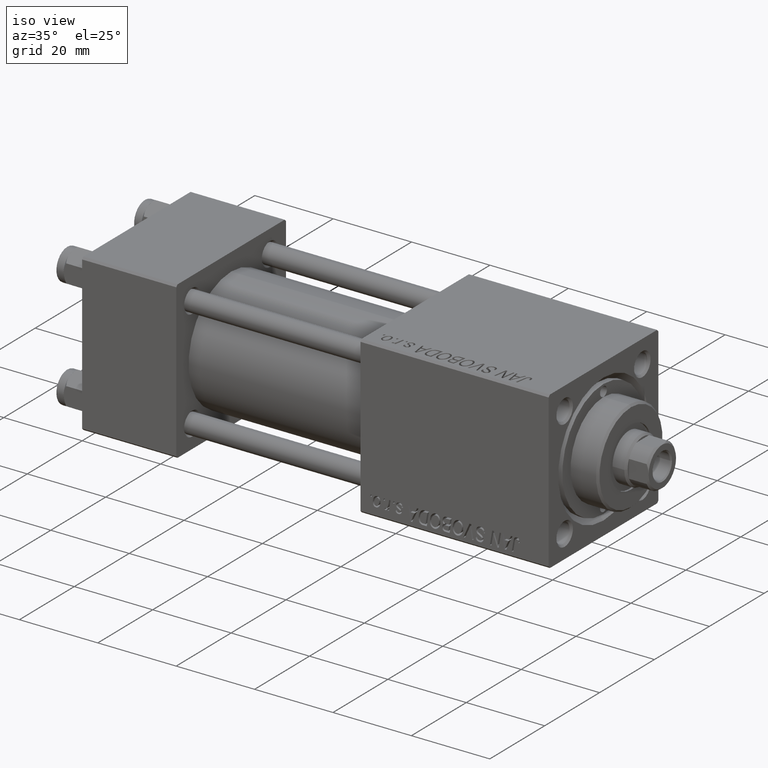
[diagram: clean part render]
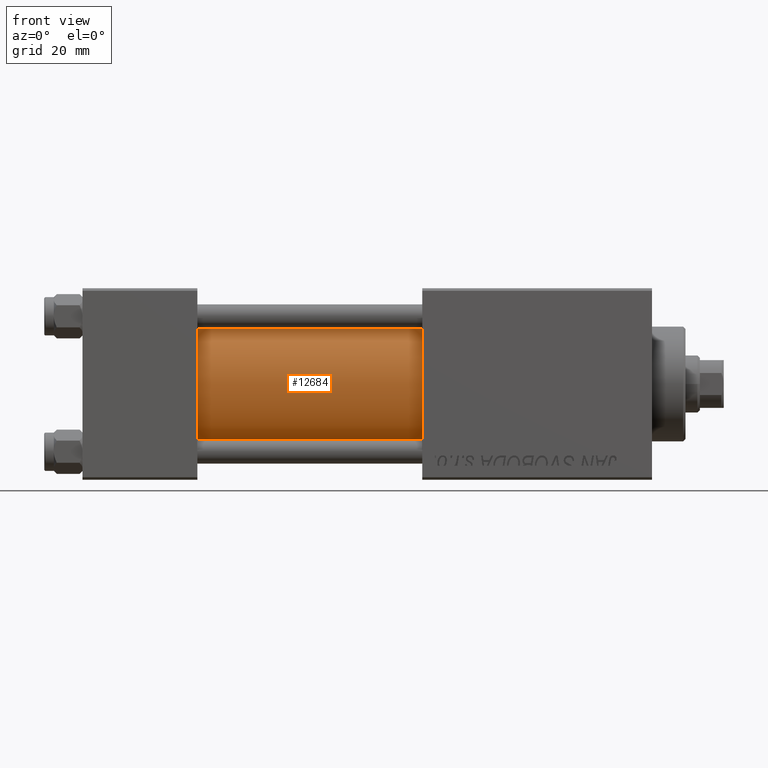
[diagram: tour spotlight — one face highlighted and labeled with its STEP entity id]
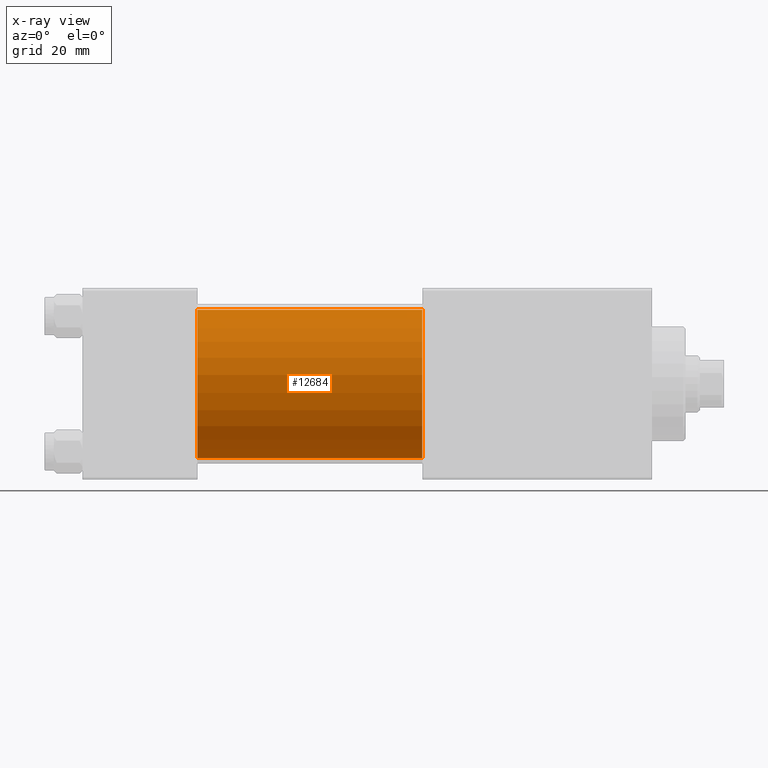
[diagram: x-ray of the same camera — body ghosted, this tour face saturated]
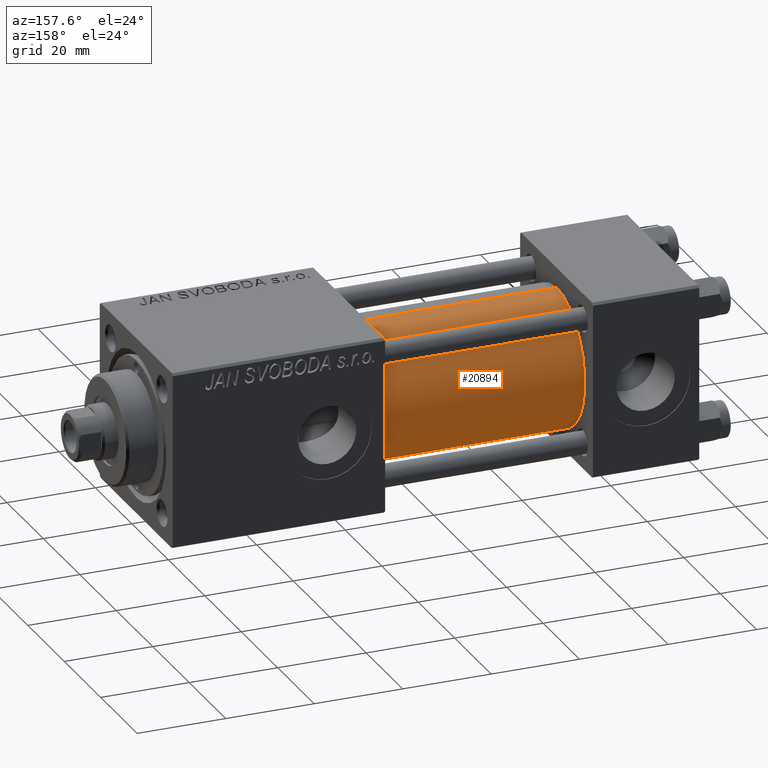
[diagram: tour spotlight — one face highlighted and labeled with its STEP entity id]
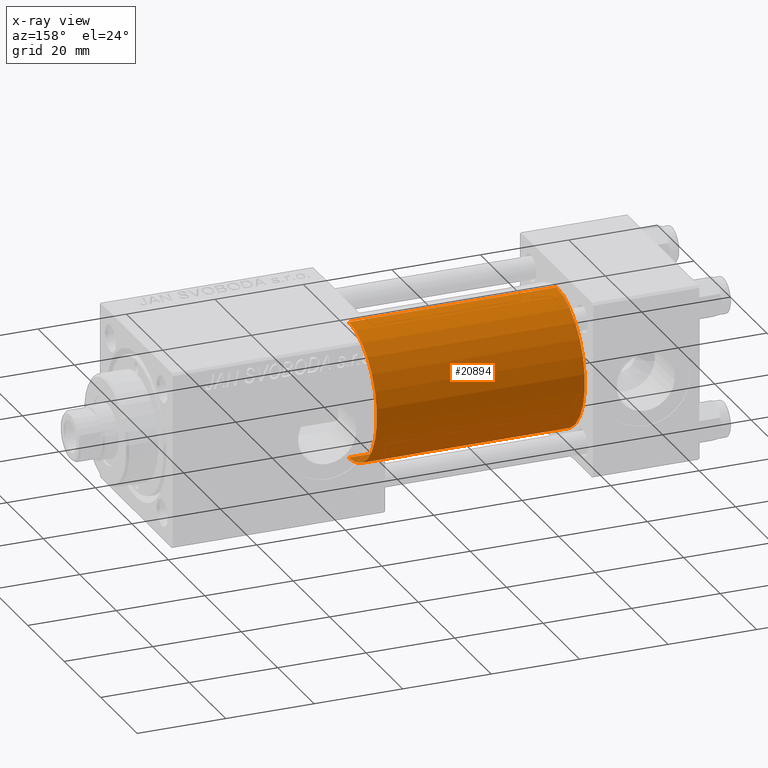
[diagram: x-ray of the same camera — body ghosted, this tour face saturated]
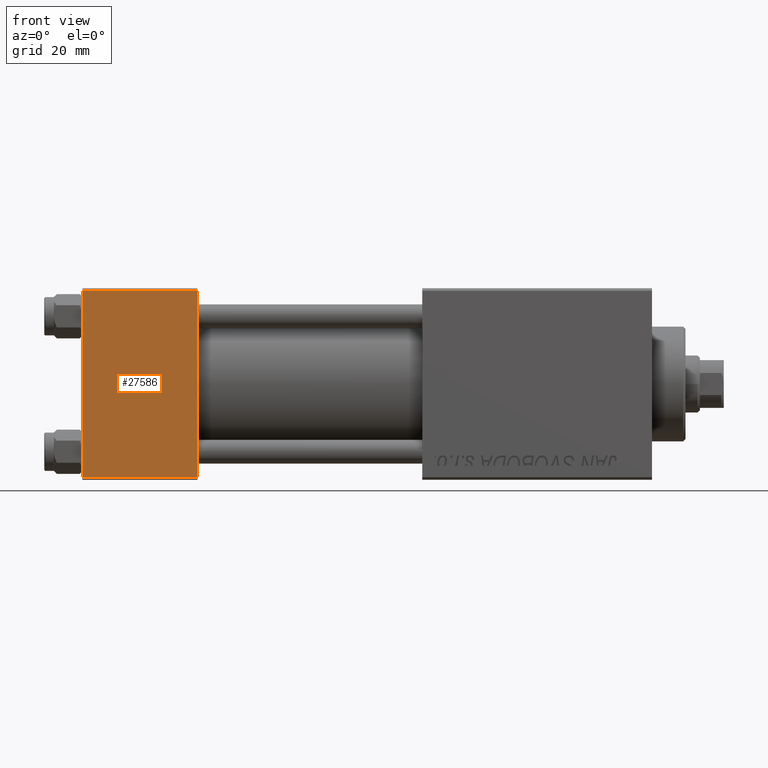
[diagram: tour spotlight — one face highlighted and labeled with its STEP entity id]
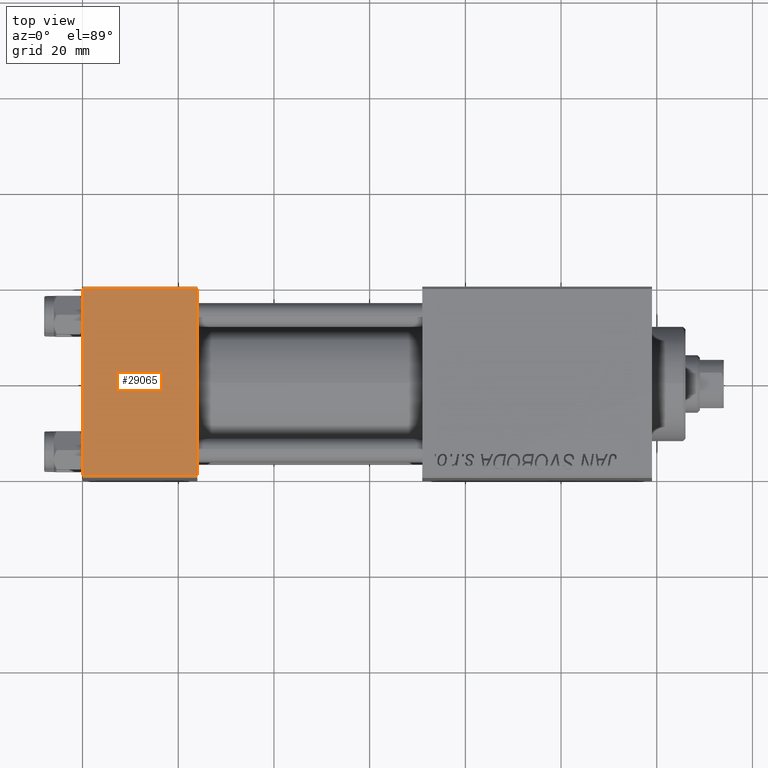
[diagram: tour spotlight — one face highlighted and labeled with its STEP entity id]
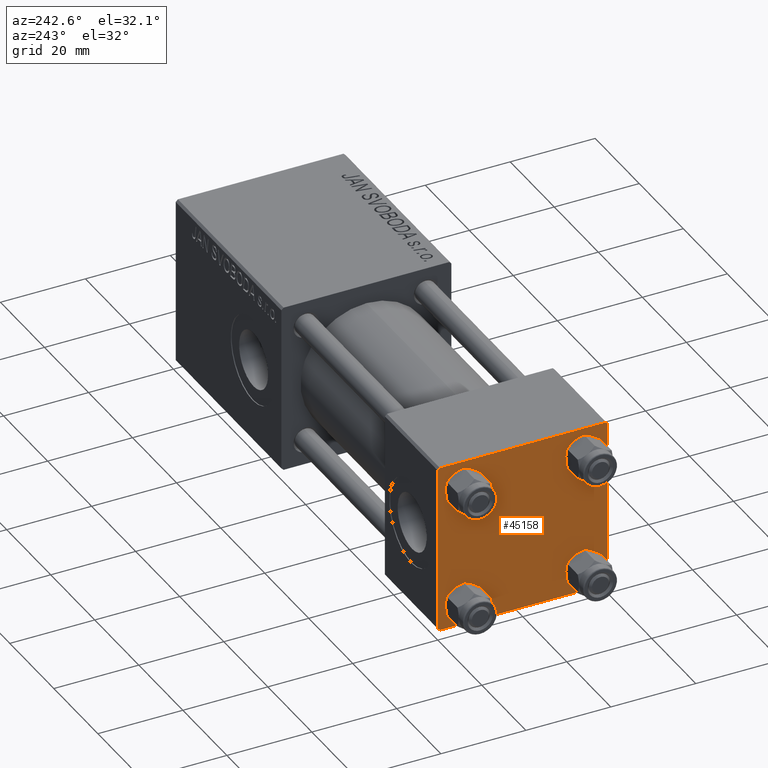
[diagram: tour spotlight — one face highlighted and labeled with its STEP entity id]
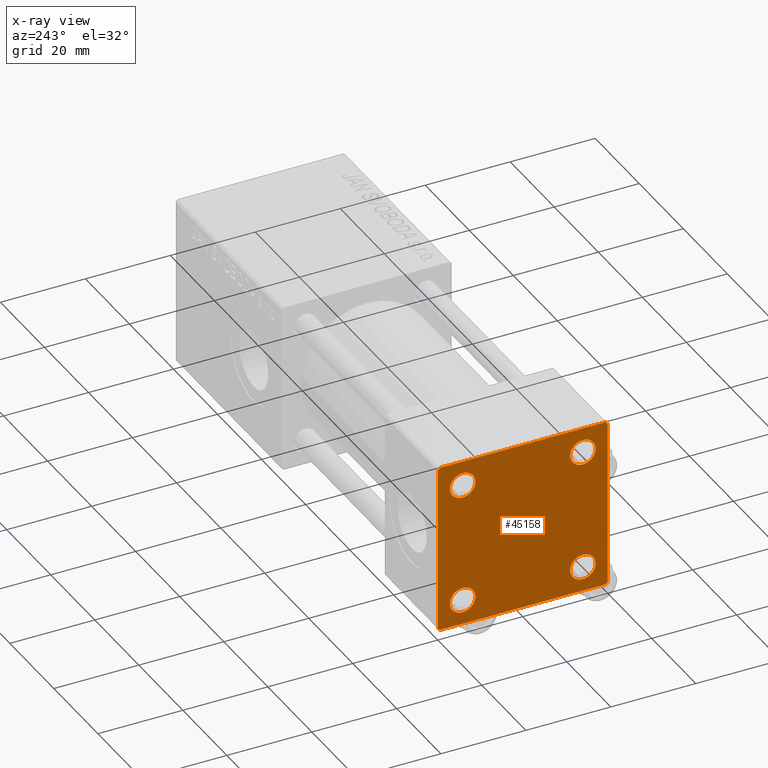
[diagram: x-ray of the same camera — body ghosted, this tour face saturated]
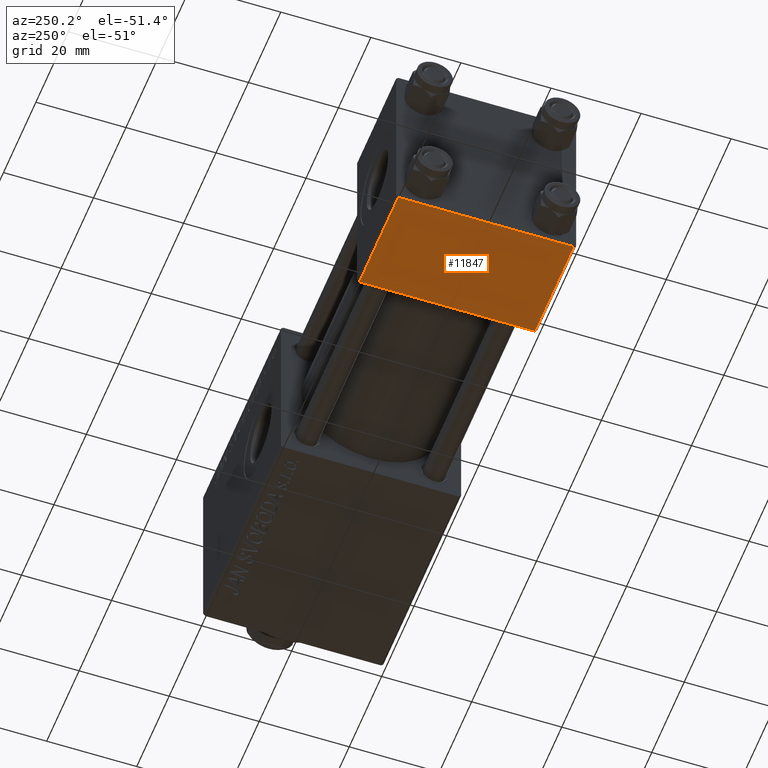
[diagram: tour spotlight — one face highlighted and labeled with its STEP entity id]
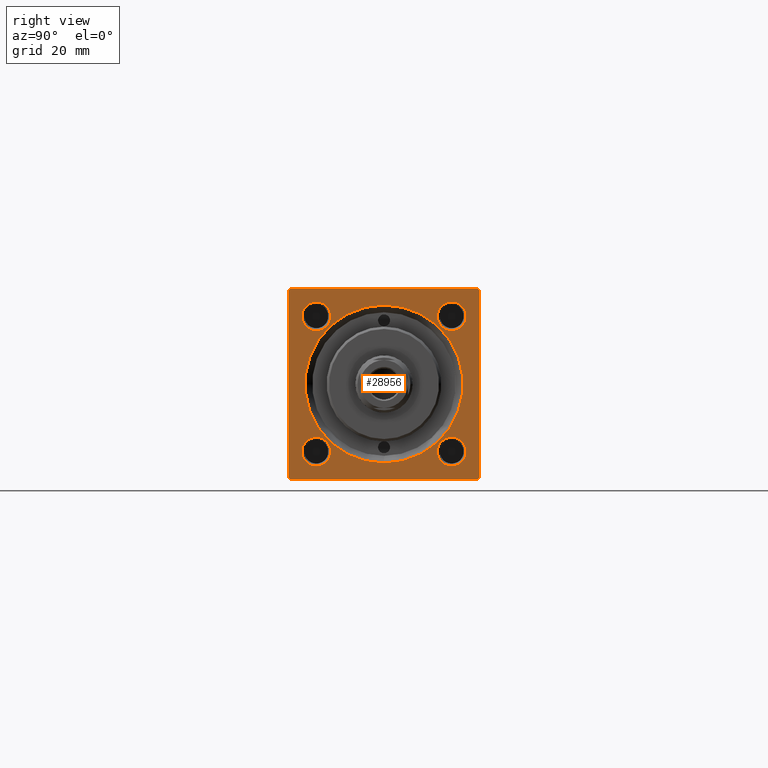
[diagram: tour spotlight — one face highlighted and labeled with its STEP entity id]
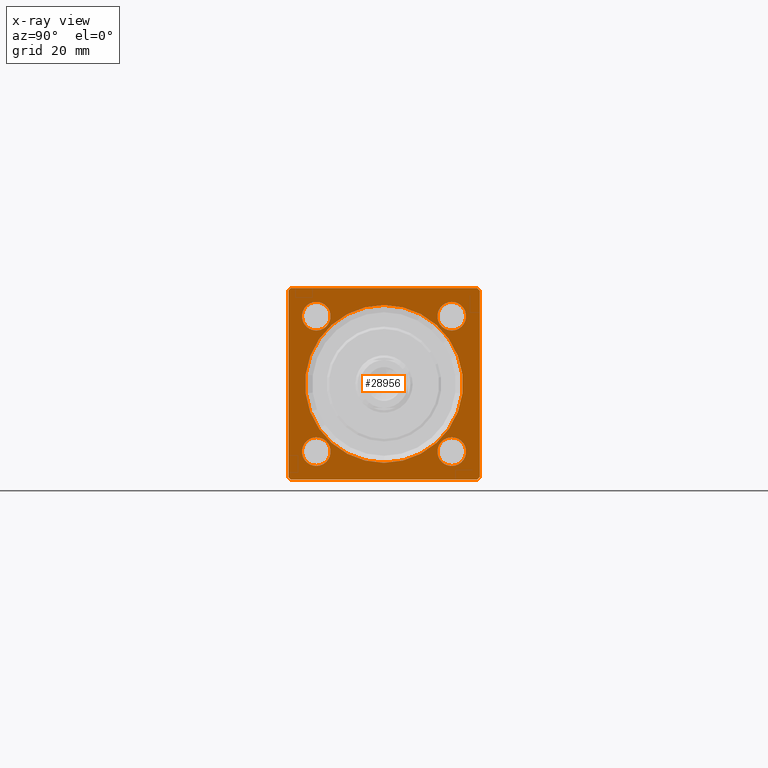
[diagram: x-ray of the same camera — body ghosted, this tour face saturated]
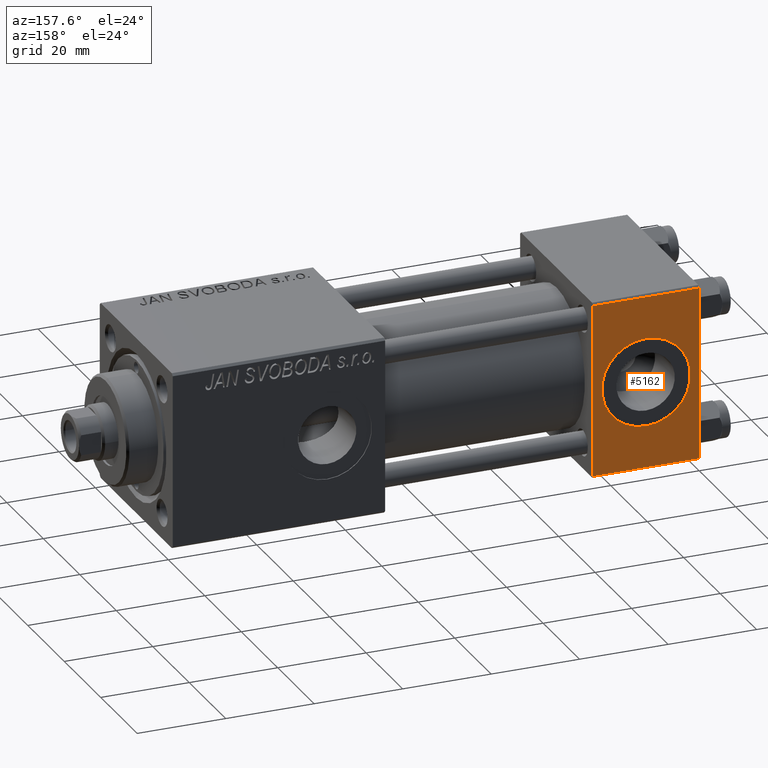
[diagram: tour spotlight — one face highlighted and labeled with its STEP entity id]
A machine part: a face-by-face anatomy tour. The part has 1154 B-rep faces; the first image is the clean iso view, then the 8 largest visible faces are spotlighted one at a time (largest first), each with its STEP entity span.

Face 1 — front view, entity #12684. An x-ray twin of the same camera follows (body ghosted, this face saturated) — the face is partly hidden behind the body. In plain terms, the highlighted cylindrical surface (partial cylindrical patch) has radius 15.5 mm, axis along (-1, -0, -0).
Definition (entity closure, byte-faithful):
#2378 = FACE_OUTER_BOUND ( 'NONE', #46344, .T. ) ;
#3227 = CARTESIAN_POINT ( 'NONE',  ( 71.00000000000001421, -7.038826752868131828E-16, -15.50000000000000000 ) ) ;
#3403 = AXIS2_PLACEMENT_3D ( 'NONE', #40737, #18108, #25751 ) ;
#3718 = VERTEX_POINT ( 'NONE', #3227 ) ;
#5942 = DIRECTION ( 'NONE',  ( -1.000000000000000000, -0.000000000000000000, -0.000000000000000000 ) ) ;
#8661 = VERTEX_POINT ( 'NONE', #15104 ) ;
#9322 = DIRECTION ( 'NONE',  ( -1.000000000000000000, -0.000000000000000000, -0.000000000000000000 ) ) ;
#11490 = VERTEX_POINT ( 'NONE', #21511 ) ;
#12684 = ADVANCED_FACE ( 'NONE', ( #2378 ), #29598, .T. ) ;
#14285 = DIRECTION ( 'NONE',  ( 0.000000000000000000, 0.000000000000000000, 1.000000000000000000 ) ) ;
#15104 = CARTESIAN_POINT ( 'NONE',  ( 71.00000000000001421, -2.602085213965210642E-15, 15.50000000000000000 ) ) ;
#16439 = EDGE_CURVE ( 'NONE', #3718, #11490, #45515, .T. ) ;
#16962 = CARTESIAN_POINT ( 'NONE',  ( 71.00000000000001421, -2.602085213965210642E-15, 15.50000000000000000 ) ) ;
#16988 = VECTOR ( 'NONE', #26453, 1000.000000000000000 ) ;
#17289 = CIRCLE ( 'NONE', #21335, 15.50000000000000000 ) ;
#17852 = DIRECTION ( 'NONE',  ( 1.000000000000000000, 0.000000000000000000, 0.000000000000000000 ) ) ;
#18106 = CARTESIAN_POINT ( 'NONE',  ( 24.00000000000000000, -2.602085213965210642E-15, 0.000000000000000000 ) ) ;
#18108 = DIRECTION ( 'NONE',  ( 1.000000000000000000, 0.000000000000000000, 0.000000000000000000 ) ) ;
#20442 = ORIENTED_EDGE ( 'NONE', *, *, #30897, .T. ) ;
#21335 = AXIS2_PLACEMENT_3D ( 'NONE', #18106, #17852, #14285 ) ;
#21511 = CARTESIAN_POINT ( 'NONE',  ( 24.00000000000000000, -7.038826752868131828E-16, -15.50000000000000000 ) ) ;
#24775 = CARTESIAN_POINT ( 'NONE',  ( 71.00000000000001421, -2.602085213965210642E-15, 0.000000000000000000 ) ) ;
#25751 = DIRECTION ( 'NONE',  ( 0.000000000000000000, 0.000000000000000000, -1.000000000000000000 ) ) ;
#26453 = DIRECTION ( 'NONE',  ( -1.000000000000000000, -0.000000000000000000, -0.000000000000000000 ) ) ;
#27936 = LINE ( 'NONE', #16962, #46862 ) ;
#28994 = EDGE_CURVE ( 'NONE', #8661, #3718, #29393, .T. ) ;
#29008 = CARTESIAN_POINT ( 'NONE',  ( 24.00000000000000000, -2.602085213965210642E-15, 15.50000000000000000 ) ) ;
#29393 = CIRCLE ( 'NONE', #3403, 15.50000000000000000 ) ;
#29598 = CYLINDRICAL_SURFACE ( 'NONE', #48648, 15.50000000000000000 ) ;
#30897 = EDGE_CURVE ( 'NONE', #38963, #11490, #17289, .T. ) ;
#33847 = ORIENTED_EDGE ( 'NONE', *, *, #28994, .F. ) ;
#34017 = ORIENTED_EDGE ( 'NONE', *, *, #45062, .T. ) ;
#38963 = VERTEX_POINT ( 'NONE', #29008 ) ;
#40737 = CARTESIAN_POINT ( 'NONE',  ( 71.00000000000001421, -2.602085213965210642E-15, 0.000000000000000000 ) ) ;
#42048 = ORIENTED_EDGE ( 'NONE', *, *, #16439, .F. ) ;
#42462 = CARTESIAN_POINT ( 'NONE',  ( 71.00000000000001421, -7.038826752868131828E-16, -15.50000000000000000 ) ) ;
#44843 = DIRECTION ( 'NONE',  ( 0.000000000000000000, 0.000000000000000000, 1.000000000000000000 ) ) ;
#45062 = EDGE_CURVE ( 'NONE', #8661, #38963, #27936, .T. ) ;
#45515 = LINE ( 'NONE', #42462, #16988 ) ;
#46344 = EDGE_LOOP ( 'NONE', ( #42048, #33847, #34017, #20442 ) ) ;
#46862 = VECTOR ( 'NONE', #9322, 1000.000000000000000 ) ;
#48648 = AXIS2_PLACEMENT_3D ( 'NONE', #24775, #5942, #44843 ) ;

Face 2 — auxiliary view, entity #20894. An x-ray twin of the same camera follows (body ghosted, this face saturated) — the face is partly hidden behind the body. In plain terms, the highlighted cylindrical surface (partial cylindrical patch) has radius 15.5 mm, axis along (-1, -0, -0).
Definition (entity closure, byte-faithful):
#1043 = DIRECTION ( 'NONE',  ( -1.000000000000000000, -0.000000000000000000, -0.000000000000000000 ) ) ;
#3227 = CARTESIAN_POINT ( 'NONE',  ( 71.00000000000001421, -7.038826752868131828E-16, -15.50000000000000000 ) ) ;
#3256 = AXIS2_PLACEMENT_3D ( 'NONE', #3717, #35001, #42118 ) ;
#3717 = CARTESIAN_POINT ( 'NONE',  ( 71.00000000000001421, -2.602085213965210642E-15, 0.000000000000000000 ) ) ;
#3718 = VERTEX_POINT ( 'NONE', #3227 ) ;
#4631 = DIRECTION ( 'NONE',  ( 0.000000000000000000, 0.000000000000000000, 1.000000000000000000 ) ) ;
#6905 = DIRECTION ( 'NONE',  ( 0.000000000000000000, 0.000000000000000000, 1.000000000000000000 ) ) ;
#7409 = CARTESIAN_POINT ( 'NONE',  ( 24.00000000000000000, -2.602085213965210642E-15, 0.000000000000000000 ) ) ;
#8661 = VERTEX_POINT ( 'NONE', #15104 ) ;
#8930 = CIRCLE ( 'NONE', #15452, 15.50000000000000000 ) ;
#9322 = DIRECTION ( 'NONE',  ( -1.000000000000000000, -0.000000000000000000, -0.000000000000000000 ) ) ;
#11490 = VERTEX_POINT ( 'NONE', #21511 ) ;
#12988 = CARTESIAN_POINT ( 'NONE',  ( 71.00000000000001421, -2.602085213965210642E-15, 0.000000000000000000 ) ) ;
#15104 = CARTESIAN_POINT ( 'NONE',  ( 71.00000000000001421, -2.602085213965210642E-15, 15.50000000000000000 ) ) ;
#15452 = AXIS2_PLACEMENT_3D ( 'NONE', #7409, #34626, #6905 ) ;
#16249 = CIRCLE ( 'NONE', #3256, 15.50000000000000000 ) ;
#16439 = EDGE_CURVE ( 'NONE', #3718, #11490, #45515, .T. ) ;
#16962 = CARTESIAN_POINT ( 'NONE',  ( 71.00000000000001421, -2.602085213965210642E-15, 15.50000000000000000 ) ) ;
#16988 = VECTOR ( 'NONE', #26453, 1000.000000000000000 ) ;
#18133 = EDGE_CURVE ( 'NONE', #3718, #8661, #16249, .T. ) ;
#18325 = EDGE_CURVE ( 'NONE', #11490, #38963, #8930, .T. ) ;
#20894 = ADVANCED_FACE ( 'NONE', ( #48318 ), #21131, .T. ) ;
#21131 = CYLINDRICAL_SURFACE ( 'NONE', #46406, 15.50000000000000000 ) ;
#21398 = ORIENTED_EDGE ( 'NONE', *, *, #18133, .F. ) ;
#21511 = CARTESIAN_POINT ( 'NONE',  ( 24.00000000000000000, -7.038826752868131828E-16, -15.50000000000000000 ) ) ;
#25129 = ORIENTED_EDGE ( 'NONE', *, *, #45062, .F. ) ;
#26453 = DIRECTION ( 'NONE',  ( -1.000000000000000000, -0.000000000000000000, -0.000000000000000000 ) ) ;
#27936 = LINE ( 'NONE', #16962, #46862 ) ;
#29008 = CARTESIAN_POINT ( 'NONE',  ( 24.00000000000000000, -2.602085213965210642E-15, 15.50000000000000000 ) ) ;
#34626 = DIRECTION ( 'NONE',  ( 1.000000000000000000, 0.000000000000000000, 0.000000000000000000 ) ) ;
#34857 = ORIENTED_EDGE ( 'NONE', *, *, #16439, .T. ) ;
#35001 = DIRECTION ( 'NONE',  ( 1.000000000000000000, 0.000000000000000000, 0.000000000000000000 ) ) ;
#38963 = VERTEX_POINT ( 'NONE', #29008 ) ;
#42118 = DIRECTION ( 'NONE',  ( 0.000000000000000000, 0.000000000000000000, -1.000000000000000000 ) ) ;
#42462 = CARTESIAN_POINT ( 'NONE',  ( 71.00000000000001421, -7.038826752868131828E-16, -15.50000000000000000 ) ) ;
#45062 = EDGE_CURVE ( 'NONE', #8661, #38963, #27936, .T. ) ;
#45515 = LINE ( 'NONE', #42462, #16988 ) ;
#46406 = AXIS2_PLACEMENT_3D ( 'NONE', #12988, #1043, #4631 ) ;
#46862 = VECTOR ( 'NONE', #9322, 1000.000000000000000 ) ;
#48318 = FACE_OUTER_BOUND ( 'NONE', #48499, .T. ) ;
#48499 = EDGE_LOOP ( 'NONE', ( #21398, #34857, #49182, #25129 ) ) ;
#49182 = ORIENTED_EDGE ( 'NONE', *, *, #18325, .T. ) ;

Face 3 — front view, entity #27586. In plain terms, the highlighted planar face has unit normal (0, 1, 0).
Definition (entity closure, byte-faithful):
#1701 = VERTEX_POINT ( 'NONE', #5565 ) ;
#4259 = VECTOR ( 'NONE', #7854, 1000.000000000000000 ) ;
#5565 = CARTESIAN_POINT ( 'NONE',  ( 24.00000000000000000, -20.00000000000000000, -19.49999999999999645 ) ) ;
#7854 = DIRECTION ( 'NONE',  ( 1.000000000000000000, 0.000000000000000000, 0.000000000000000000 ) ) ;
#8600 = LINE ( 'NONE', #39149, #4259 ) ;
#10069 = PLANE ( 'NONE',  #44882 ) ;
#10736 = EDGE_LOOP ( 'NONE', ( #20014, #42426, #12896, #40430 ) ) ;
#10826 = LINE ( 'NONE', #14386, #35934 ) ;
#12415 = DIRECTION ( 'NONE',  ( 0.000000000000000000, 8.673617379884036705E-17, -1.000000000000000000 ) ) ;
#12896 = ORIENTED_EDGE ( 'NONE', *, *, #40652, .F. ) ;
#14141 = DIRECTION ( 'NONE',  ( 0.000000000000000000, -8.673617379884036705E-17, 1.000000000000000000 ) ) ;
#14386 = CARTESIAN_POINT ( 'NONE',  ( 24.00000000000000000, -20.00000000000000355, 19.49999999999998224 ) ) ;
#18115 = VERTEX_POINT ( 'NONE', #18981 ) ;
#18216 = CARTESIAN_POINT ( 'NONE',  ( 24.00000000000000000, -20.00000000000000355, 19.99999999999998934 ) ) ;
#18723 = CARTESIAN_POINT ( 'NONE',  ( 0.000000000000000000, -20.00000000000000355, 19.99999999999998934 ) ) ;
#18981 = CARTESIAN_POINT ( 'NONE',  ( 0.000000000000000000, -20.00000000000000355, 19.49999999999998224 ) ) ;
#20014 = ORIENTED_EDGE ( 'NONE', *, *, #24526, .T. ) ;
#24445 = VERTEX_POINT ( 'NONE', #25095 ) ;
#24526 = EDGE_CURVE ( 'NONE', #18115, #24445, #48728, .T. ) ;
#24616 = CARTESIAN_POINT ( 'NONE',  ( 24.00000000000000000, -20.00000000000000355, 19.99999999999998934 ) ) ;
#25095 = CARTESIAN_POINT ( 'NONE',  ( 0.000000000000000000, -20.00000000000000000, -19.49999999999999645 ) ) ;
#26030 = EDGE_CURVE ( 'NONE', #24445, #1701, #8600, .T. ) ;
#26885 = EDGE_CURVE ( 'NONE', #35729, #18115, #10826, .T. ) ;
#27586 = ADVANCED_FACE ( 'NONE', ( #41106 ), #10069, .F. ) ;
#30174 = DIRECTION ( 'NONE',  ( -0.000000000000000000, 1.000000000000000000, 8.673617379884036705E-17 ) ) ;
#35568 = LINE ( 'NONE', #24616, #48426 ) ;
#35729 = VERTEX_POINT ( 'NONE', #43535 ) ;
#35934 = VECTOR ( 'NONE', #49218, 1000.000000000000000 ) ;
#36683 = VECTOR ( 'NONE', #41604, 1000.000000000000000 ) ;
#39149 = CARTESIAN_POINT ( 'NONE',  ( 24.00000000000000000, -20.00000000000000000, -19.49999999999999645 ) ) ;
#40430 = ORIENTED_EDGE ( 'NONE', *, *, #26885, .T. ) ;
#40652 = EDGE_CURVE ( 'NONE', #35729, #1701, #35568, .T. ) ;
#41106 = FACE_OUTER_BOUND ( 'NONE', #10736, .T. ) ;
#41604 = DIRECTION ( 'NONE',  ( 0.000000000000000000, 8.673617379884036705E-17, -1.000000000000000000 ) ) ;
#42426 = ORIENTED_EDGE ( 'NONE', *, *, #26030, .T. ) ;
#43535 = CARTESIAN_POINT ( 'NONE',  ( 24.00000000000000000, -20.00000000000000355, 19.49999999999998224 ) ) ;
#44882 = AXIS2_PLACEMENT_3D ( 'NONE', #18216, #30174, #14141 ) ;
#48426 = VECTOR ( 'NONE', #12415, 1000.000000000000000 ) ;
#48728 = LINE ( 'NONE', #18723, #36683 ) ;
#49218 = DIRECTION ( 'NONE',  ( -1.000000000000000000, 0.000000000000000000, 0.000000000000000000 ) ) ;

Face 4 — top view, entity #29065. In plain terms, the highlighted planar face has unit normal (0, 0, -1).
Definition (entity closure, byte-faithful):
#3745 = CARTESIAN_POINT ( 'NONE',  ( 24.00000000000000000, -19.49999999999999289, 19.99999999999998934 ) ) ;
#4491 = DIRECTION ( 'NONE',  ( 1.000000000000000000, 0.000000000000000000, 0.000000000000000000 ) ) ;
#5973 = VECTOR ( 'NONE', #22776, 1000.000000000000000 ) ;
#11155 = PLANE ( 'NONE',  #36673 ) ;
#11557 = ORIENTED_EDGE ( 'NONE', *, *, #39276, .F. ) ;
#11659 = CARTESIAN_POINT ( 'NONE',  ( 0.000000000000000000, -19.49999999999999289, 19.99999999999998934 ) ) ;
#13413 = CARTESIAN_POINT ( 'NONE',  ( 24.00000000000000000, 20.00000000000000000, 20.00000000000000000 ) ) ;
#13611 = ORIENTED_EDGE ( 'NONE', *, *, #44492, .T. ) ;
#14273 = LINE ( 'NONE', #22180, #39547 ) ;
#15413 = ORIENTED_EDGE ( 'NONE', *, *, #23496, .T. ) ;
#18386 = VERTEX_POINT ( 'NONE', #43012 ) ;
#19265 = LINE ( 'NONE', #3745, #38242 ) ;
#20164 = EDGE_CURVE ( 'NONE', #42672, #18386, #19265, .T. ) ;
#22180 = CARTESIAN_POINT ( 'NONE',  ( 0.000000000000000000, 19.50000000000000000, 20.00000000000000000 ) ) ;
#22776 = DIRECTION ( 'NONE',  ( 0.000000000000000000, -1.000000000000000000, -2.602085213965210149E-16 ) ) ;
#23496 = EDGE_CURVE ( 'NONE', #34818, #42672, #49712, .T. ) ;
#25647 = VECTOR ( 'NONE', #28947, 1000.000000000000000 ) ;
#27953 = EDGE_LOOP ( 'NONE', ( #15413, #33531, #11557, #13611 ) ) ;
#28947 = DIRECTION ( 'NONE',  ( 0.000000000000000000, -1.000000000000000000, -2.602085213965210149E-16 ) ) ;
#29065 = ADVANCED_FACE ( 'NONE', ( #45989 ), #11155, .F. ) ;
#30225 = CARTESIAN_POINT ( 'NONE',  ( 0.000000000000000000, 19.50000000000000000, 20.00000000000000000 ) ) ;
#30402 = CARTESIAN_POINT ( 'NONE',  ( 0.000000000000000000, 20.00000000000000000, 20.00000000000000000 ) ) ;
#33531 = ORIENTED_EDGE ( 'NONE', *, *, #20164, .T. ) ;
#34818 = VERTEX_POINT ( 'NONE', #30225 ) ;
#36673 = AXIS2_PLACEMENT_3D ( 'NONE', #38123, #43175, #50052 ) ;
#37434 = DIRECTION ( 'NONE',  ( -1.000000000000000000, 0.000000000000000000, 0.000000000000000000 ) ) ;
#38123 = CARTESIAN_POINT ( 'NONE',  ( 24.00000000000000000, 20.00000000000000000, 20.00000000000000000 ) ) ;
#38242 = VECTOR ( 'NONE', #4491, 1000.000000000000000 ) ;
#39276 = EDGE_CURVE ( 'NONE', #45378, #18386, #44694, .T. ) ;
#39547 = VECTOR ( 'NONE', #37434, 1000.000000000000000 ) ;
#42130 = CARTESIAN_POINT ( 'NONE',  ( 24.00000000000000000, 19.50000000000000000, 20.00000000000000000 ) ) ;
#42672 = VERTEX_POINT ( 'NONE', #11659 ) ;
#43012 = CARTESIAN_POINT ( 'NONE',  ( 24.00000000000000000, -19.49999999999999289, 19.99999999999998934 ) ) ;
#43175 = DIRECTION ( 'NONE',  ( 0.000000000000000000, 2.602085213965210149E-16, -1.000000000000000000 ) ) ;
#44492 = EDGE_CURVE ( 'NONE', #45378, #34818, #14273, .T. ) ;
#44694 = LINE ( 'NONE', #13413, #25647 ) ;
#45378 = VERTEX_POINT ( 'NONE', #42130 ) ;
#45989 = FACE_OUTER_BOUND ( 'NONE', #27953, .T. ) ;
#49712 = LINE ( 'NONE', #30402, #5973 ) ;
#50052 = DIRECTION ( 'NONE',  ( 0.000000000000000000, 1.000000000000000000, 2.602085213965210149E-16 ) ) ;

Face 5 — auxiliary view, entity #45158. An x-ray twin of the same camera follows (body ghosted, this face saturated) — the face is partly hidden behind the body. In plain terms, the highlighted planar face has unit normal (-1, 0, 0).
Definition (entity closure, byte-faithful):
#593 = AXIS2_PLACEMENT_3D ( 'NONE', #18488, #22314, #14156 ) ;
#778 = CIRCLE ( 'NONE', #1592, 2.999999999999983569 ) ;
#826 = CARTESIAN_POINT ( 'NONE',  ( 0.000000000000000000, -14.14999999999999503, -11.15000000000000036 ) ) ;
#954 = VERTEX_POINT ( 'NONE', #9347 ) ;
#1249 = VERTEX_POINT ( 'NONE', #47708 ) ;
#1353 = VERTEX_POINT ( 'NONE', #22276 ) ;
#1515 = DIRECTION ( 'NONE',  ( 0.000000000000000000, 0.000000000000000000, 1.000000000000000000 ) ) ;
#1592 = AXIS2_PLACEMENT_3D ( 'NONE', #2409, #13853, #44107 ) ;
#1621 = ORIENTED_EDGE ( 'NONE', *, *, #27841, .T. ) ;
#2173 = CIRCLE ( 'NONE', #43594, 3.000000000000004441 ) ;
#2268 = CARTESIAN_POINT ( 'NONE',  ( 0.000000000000000000, 14.14999999999999858, 17.14999999999998437 ) ) ;
#2409 = CARTESIAN_POINT ( 'NONE',  ( 0.000000000000000000, -14.14999999999999503, 14.15000000000000391 ) ) ;
#2500 = VERTEX_POINT ( 'NONE', #31802 ) ;
#2706 = VERTEX_POINT ( 'NONE', #26933 ) ;
#2974 = FACE_BOUND ( 'NONE', #40891, .T. ) ;
#3361 = CARTESIAN_POINT ( 'NONE',  ( -0.000000000000000000, -19.74999999999992539, 19.75000000000006395 ) ) ;
#3466 = EDGE_LOOP ( 'NONE', ( #27292, #9738 ) ) ;
#3491 = DIRECTION ( 'NONE',  ( 1.000000000000000000, 0.000000000000000000, 0.000000000000000000 ) ) ;
#3709 = DIRECTION ( 'NONE',  ( 0.000000000000000000, -0.7071067811865401342, 0.7071067811865549002 ) ) ;
#4711 = DIRECTION ( 'NONE',  ( 0.000000000000000000, -1.000000000000000000, 1.734723475976807094E-16 ) ) ;
#4749 = VECTOR ( 'NONE', #33017, 1000.000000000000000 ) ;
#5344 = DIRECTION ( 'NONE',  ( 1.000000000000000000, 0.000000000000000000, 0.000000000000000000 ) ) ;
#5524 = FACE_BOUND ( 'NONE', #3466, .T. ) ;
#5868 = CIRCLE ( 'NONE', #10741, 2.999999999999983569 ) ;
#5973 = VECTOR ( 'NONE', #22776, 1000.000000000000000 ) ;
#7718 = DIRECTION ( 'NONE',  ( 0.000000000000000000, 0.7071067811865425767, -0.7071067811865525687 ) ) ;
#7875 = DIRECTION ( 'NONE',  ( 0.000000000000000000, 0.000000000000000000, -1.000000000000000000 ) ) ;
#8226 = CARTESIAN_POINT ( 'NONE',  ( 0.000000000000000000, 14.14999999999999858, -14.15000000000000036 ) ) ;
#8903 = EDGE_CURVE ( 'NONE', #18115, #42672, #34383, .T. ) ;
#9098 = CARTESIAN_POINT ( 'NONE',  ( 0.000000000000000000, 14.14999999999999858, 11.15000000000001990 ) ) ;
#9347 = CARTESIAN_POINT ( 'NONE',  ( 0.000000000000000000, 19.50000000000000711, -20.00000000000000711 ) ) ;
#9589 = DIRECTION ( 'NONE',  ( 1.000000000000000000, 0.000000000000000000, 0.000000000000000000 ) ) ;
#9612 = CARTESIAN_POINT ( 'NONE',  ( 0.000000000000000000, 20.00000000000000000, -19.50000000000002132 ) ) ;
#9648 = VECTOR ( 'NONE', #7718, 999.9999999999998863 ) ;
#9738 = ORIENTED_EDGE ( 'NONE', *, *, #12892, .T. ) ;
#10201 = EDGE_CURVE ( 'NONE', #34757, #954, #14187, .T. ) ;
#10281 = ORIENTED_EDGE ( 'NONE', *, *, #10201, .T. ) ;
#10343 = FACE_BOUND ( 'NONE', #38796, .T. ) ;
#10503 = AXIS2_PLACEMENT_3D ( 'NONE', #13992, #36634, #17559 ) ;
#10634 = CARTESIAN_POINT ( 'NONE',  ( 0.000000000000000000, -14.14999999999999503, 14.15000000000000391 ) ) ;
#10741 = AXIS2_PLACEMENT_3D ( 'NONE', #18290, #46254, #26937 ) ;
#11199 = AXIS2_PLACEMENT_3D ( 'NONE', #34390, #46588, #19386 ) ;
#11202 = VECTOR ( 'NONE', #49375, 1000.000000000000114 ) ;
#11659 = CARTESIAN_POINT ( 'NONE',  ( 0.000000000000000000, -19.49999999999999289, 19.99999999999998934 ) ) ;
#12579 = CARTESIAN_POINT ( 'NONE',  ( 0.000000000000000000, 20.00000000000000000, -20.00000000000000711 ) ) ;
#12804 = ORIENTED_EDGE ( 'NONE', *, *, #8903, .T. ) ;
#12892 = EDGE_CURVE ( 'NONE', #43622, #2500, #778, .T. ) ;
#12899 = FACE_BOUND ( 'NONE', #45573, .T. ) ;
#13853 = DIRECTION ( 'NONE',  ( 1.000000000000000000, 0.000000000000000000, 0.000000000000000000 ) ) ;
#13992 = CARTESIAN_POINT ( 'NONE',  ( 0.000000000000000000, -14.14999999999999503, -14.15000000000000391 ) ) ;
#14156 = DIRECTION ( 'NONE',  ( -0.000000000000000000, 0.000000000000000000, 1.000000000000000000 ) ) ;
#14187 = LINE ( 'NONE', #17495, #4749 ) ;
#14361 = EDGE_CURVE ( 'NONE', #1249, #34757, #42468, .T. ) ;
#14736 = VECTOR ( 'NONE', #4711, 1000.000000000000000 ) ;
#15458 = DIRECTION ( 'NONE',  ( 1.000000000000000000, 0.000000000000000000, 0.000000000000000000 ) ) ;
#15513 = CARTESIAN_POINT ( 'NONE',  ( 0.000000000000000000, 20.00000000000000000, 20.00000000000000000 ) ) ;
#15690 = ORIENTED_EDGE ( 'NONE', *, *, #49907, .T. ) ;
#17285 = EDGE_CURVE ( 'NONE', #36341, #2706, #40545, .T. ) ;
#17495 = CARTESIAN_POINT ( 'NONE',  ( -0.000000000000000000, 19.74999999999986855, -19.75000000000014211 ) ) ;
#17559 = DIRECTION ( 'NONE',  ( 0.000000000000000000, 0.000000000000000000, 1.000000000000000000 ) ) ;
#18115 = VERTEX_POINT ( 'NONE', #18981 ) ;
#18290 = CARTESIAN_POINT ( 'NONE',  ( 0.000000000000000000, 14.14999999999999858, 14.15000000000000036 ) ) ;
#18488 = CARTESIAN_POINT ( 'NONE',  ( 0.000000000000000000, 0.000000000000000000, 0.000000000000000000 ) ) ;
#18723 = CARTESIAN_POINT ( 'NONE',  ( 0.000000000000000000, -20.00000000000000355, 19.99999999999998934 ) ) ;
#18751 = DIRECTION ( 'NONE',  ( 0.000000000000000000, 0.000000000000000000, 1.000000000000000000 ) ) ;
#18981 = CARTESIAN_POINT ( 'NONE',  ( 0.000000000000000000, -20.00000000000000355, 19.49999999999998224 ) ) ;
#19386 = DIRECTION ( 'NONE',  ( 0.000000000000000000, 0.000000000000000000, 1.000000000000000000 ) ) ;
#19687 = CARTESIAN_POINT ( 'NONE',  ( -0.000000000000000000, 19.75000000000013500, 19.74999999999986144 ) ) ;
#20135 = ORIENTED_EDGE ( 'NONE', *, *, #25023, .T. ) ;
#20993 = ORIENTED_EDGE ( 'NONE', *, *, #14361, .T. ) ;
#21083 = VERTEX_POINT ( 'NONE', #9098 ) ;
#21179 = ORIENTED_EDGE ( 'NONE', *, *, #46236, .T. ) ;
#22201 = ORIENTED_EDGE ( 'NONE', *, *, #45832, .T. ) ;
#22276 = CARTESIAN_POINT ( 'NONE',  ( 0.000000000000000000, 14.14999999999999858, -11.15000000000001812 ) ) ;
#22314 = DIRECTION ( 'NONE',  ( -1.000000000000000000, 0.000000000000000000, -0.000000000000000000 ) ) ;
#22573 = CARTESIAN_POINT ( 'NONE',  ( 0.000000000000000000, -14.14999999999999503, -14.15000000000000391 ) ) ;
#22776 = DIRECTION ( 'NONE',  ( 0.000000000000000000, -1.000000000000000000, -2.602085213965210149E-16 ) ) ;
#23496 = EDGE_CURVE ( 'NONE', #34818, #42672, #49712, .T. ) ;
#23506 = LINE ( 'NONE', #19687, #9648 ) ;
#24445 = VERTEX_POINT ( 'NONE', #25095 ) ;
#24526 = EDGE_CURVE ( 'NONE', #18115, #24445, #48728, .T. ) ;
#24986 = CIRCLE ( 'NONE', #11199, 2.999999999999983569 ) ;
#25023 = EDGE_CURVE ( 'NONE', #40414, #21083, #5868, .T. ) ;
#25095 = CARTESIAN_POINT ( 'NONE',  ( 0.000000000000000000, -20.00000000000000000, -19.49999999999999645 ) ) ;
#26933 = CARTESIAN_POINT ( 'NONE',  ( 0.000000000000000000, -14.14999999999999503, -17.15000000000000924 ) ) ;
#26937 = DIRECTION ( 'NONE',  ( 0.000000000000000000, 0.000000000000000000, 1.000000000000000000 ) ) ;
#27292 = ORIENTED_EDGE ( 'NONE', *, *, #34923, .T. ) ;
#27841 = EDGE_CURVE ( 'NONE', #954, #29246, #29101, .T. ) ;
#29101 = LINE ( 'NONE', #12579, #14736 ) ;
#29246 = VERTEX_POINT ( 'NONE', #31732 ) ;
#30077 = ORIENTED_EDGE ( 'NONE', *, *, #23496, .F. ) ;
#30225 = CARTESIAN_POINT ( 'NONE',  ( 0.000000000000000000, 19.50000000000000000, 20.00000000000000000 ) ) ;
#30402 = CARTESIAN_POINT ( 'NONE',  ( 0.000000000000000000, 20.00000000000000000, 20.00000000000000000 ) ) ;
#30666 = CARTESIAN_POINT ( 'NONE',  ( 0.000000000000000000, -19.75000000000020961, -19.74999999999979394 ) ) ;
#31732 = CARTESIAN_POINT ( 'NONE',  ( 0.000000000000000000, -19.50000000000000711, -20.00000000000000000 ) ) ;
#31802 = CARTESIAN_POINT ( 'NONE',  ( 0.000000000000000000, -14.14999999999999503, 17.14999999999998792 ) ) ;
#33017 = DIRECTION ( 'NONE',  ( -0.000000000000000000, -0.7071067811865524577, -0.7071067811865426878 ) ) ;
#33719 = ORIENTED_EDGE ( 'NONE', *, *, #45890, .T. ) ;
#34383 = LINE ( 'NONE', #3361, #11202 ) ;
#34390 = CARTESIAN_POINT ( 'NONE',  ( 0.000000000000000000, 14.14999999999999858, 14.15000000000000036 ) ) ;
#34442 = AXIS2_PLACEMENT_3D ( 'NONE', #10634, #15458, #46479 ) ;
#34483 = LINE ( 'NONE', #30666, #46043 ) ;
#34704 = EDGE_LOOP ( 'NONE', ( #20993, #10281, #1621, #42602, #45079, #12804, #30077, #15690 ) ) ;
#34757 = VERTEX_POINT ( 'NONE', #9612 ) ;
#34818 = VERTEX_POINT ( 'NONE', #30225 ) ;
#34923 = EDGE_CURVE ( 'NONE', #2500, #43622, #49857, .T. ) ;
#35526 = CIRCLE ( 'NONE', #39595, 2.999999999999983569 ) ;
#36271 = CIRCLE ( 'NONE', #37812, 2.999999999999983569 ) ;
#36341 = VERTEX_POINT ( 'NONE', #826 ) ;
#36634 = DIRECTION ( 'NONE',  ( 1.000000000000000000, 0.000000000000000000, 0.000000000000000000 ) ) ;
#36683 = VECTOR ( 'NONE', #41604, 1000.000000000000000 ) ;
#36803 = FACE_OUTER_BOUND ( 'NONE', #34704, .T. ) ;
#36810 = DIRECTION ( 'NONE',  ( 0.000000000000000000, 0.000000000000000000, 1.000000000000000000 ) ) ;
#37649 = CARTESIAN_POINT ( 'NONE',  ( 0.000000000000000000, 14.14999999999999858, -17.14999999999998437 ) ) ;
#37812 = AXIS2_PLACEMENT_3D ( 'NONE', #8226, #5344, #1515 ) ;
#38796 = EDGE_LOOP ( 'NONE', ( #20135, #21179 ) ) ;
#39085 = VERTEX_POINT ( 'NONE', #37649 ) ;
#39251 = CARTESIAN_POINT ( 'NONE',  ( 0.000000000000000000, -14.14999999999999503, 11.15000000000002345 ) ) ;
#39595 = AXIS2_PLACEMENT_3D ( 'NONE', #44420, #9589, #36810 ) ;
#39795 = VECTOR ( 'NONE', #7875, 1000.000000000000000 ) ;
#40414 = VERTEX_POINT ( 'NONE', #2268 ) ;
#40545 = CIRCLE ( 'NONE', #10503, 3.000000000000004441 ) ;
#40891 = EDGE_LOOP ( 'NONE', ( #48053, #22201 ) ) ;
#41399 = EDGE_CURVE ( 'NONE', #1353, #39085, #36271, .T. ) ;
#41604 = DIRECTION ( 'NONE',  ( 0.000000000000000000, 8.673617379884036705E-17, -1.000000000000000000 ) ) ;
#42468 = LINE ( 'NONE', #15513, #39795 ) ;
#42602 = ORIENTED_EDGE ( 'NONE', *, *, #44072, .T. ) ;
#42672 = VERTEX_POINT ( 'NONE', #11659 ) ;
#42783 = ORIENTED_EDGE ( 'NONE', *, *, #17285, .T. ) ;
#43594 = AXIS2_PLACEMENT_3D ( 'NONE', #22573, #3491, #18751 ) ;
#43622 = VERTEX_POINT ( 'NONE', #39251 ) ;
#44072 = EDGE_CURVE ( 'NONE', #29246, #24445, #34483, .T. ) ;
#44107 = DIRECTION ( 'NONE',  ( 0.000000000000000000, 0.000000000000000000, 1.000000000000000000 ) ) ;
#44420 = CARTESIAN_POINT ( 'NONE',  ( 0.000000000000000000, 14.14999999999999858, -14.15000000000000036 ) ) ;
#45079 = ORIENTED_EDGE ( 'NONE', *, *, #24526, .F. ) ;
#45158 = ADVANCED_FACE ( 'NONE', ( #5524, #12899, #2974, #10343, #36803 ), #49250, .T. ) ;
#45573 = EDGE_LOOP ( 'NONE', ( #42783, #33719 ) ) ;
#45832 = EDGE_CURVE ( 'NONE', #39085, #1353, #35526, .T. ) ;
#45890 = EDGE_CURVE ( 'NONE', #2706, #36341, #2173, .T. ) ;
#46043 = VECTOR ( 'NONE', #3709, 1000.000000000000000 ) ;
#46236 = EDGE_CURVE ( 'NONE', #21083, #40414, #24986, .T. ) ;
#46254 = DIRECTION ( 'NONE',  ( 1.000000000000000000, 0.000000000000000000, 0.000000000000000000 ) ) ;
#46479 = DIRECTION ( 'NONE',  ( 0.000000000000000000, 0.000000000000000000, 1.000000000000000000 ) ) ;
#46588 = DIRECTION ( 'NONE',  ( 1.000000000000000000, 0.000000000000000000, 0.000000000000000000 ) ) ;
#47708 = CARTESIAN_POINT ( 'NONE',  ( 0.000000000000000000, 20.00000000000000000, 19.49999999999999289 ) ) ;
#48053 = ORIENTED_EDGE ( 'NONE', *, *, #41399, .T. ) ;
#48728 = LINE ( 'NONE', #18723, #36683 ) ;
#49250 = PLANE ( 'NONE',  #593 ) ;
#49375 = DIRECTION ( 'NONE',  ( -0.000000000000000000, 0.7071067811865500152, 0.7071067811865451302 ) ) ;
#49712 = LINE ( 'NONE', #30402, #5973 ) ;
#49857 = CIRCLE ( 'NONE', #34442, 2.999999999999983569 ) ;
#49907 = EDGE_CURVE ( 'NONE', #34818, #1249, #23506, .T. ) ;

Face 6 — auxiliary view, entity #11847. In plain terms, the highlighted planar face has unit normal (0, -0, -1).
Definition (entity closure, byte-faithful):
#954 = VERTEX_POINT ( 'NONE', #9347 ) ;
#1760 = LINE ( 'NONE', #33736, #19315 ) ;
#4711 = DIRECTION ( 'NONE',  ( 0.000000000000000000, -1.000000000000000000, 1.734723475976807094E-16 ) ) ;
#6848 = ORIENTED_EDGE ( 'NONE', *, *, #27841, .F. ) ;
#7893 = DIRECTION ( 'NONE',  ( 0.000000000000000000, 1.000000000000000000, -1.734723475976806848E-16 ) ) ;
#7953 = LINE ( 'NONE', #30851, #39282 ) ;
#8154 = EDGE_CURVE ( 'NONE', #28661, #29246, #1760, .T. ) ;
#9347 = CARTESIAN_POINT ( 'NONE',  ( 0.000000000000000000, 19.50000000000000711, -20.00000000000000711 ) ) ;
#11665 = ORIENTED_EDGE ( 'NONE', *, *, #32330, .T. ) ;
#11709 = PLANE ( 'NONE',  #49480 ) ;
#11847 = ADVANCED_FACE ( 'NONE', ( #31045 ), #11709, .T. ) ;
#12579 = CARTESIAN_POINT ( 'NONE',  ( 0.000000000000000000, 20.00000000000000000, -20.00000000000000711 ) ) ;
#14736 = VECTOR ( 'NONE', #4711, 1000.000000000000000 ) ;
#15917 = VERTEX_POINT ( 'NONE', #25311 ) ;
#16212 = CARTESIAN_POINT ( 'NONE',  ( 24.00000000000000000, 20.00000000000000000, -20.00000000000000711 ) ) ;
#18429 = ORIENTED_EDGE ( 'NONE', *, *, #8154, .T. ) ;
#19315 = VECTOR ( 'NONE', #32302, 1000.000000000000000 ) ;
#20034 = LINE ( 'NONE', #16212, #31146 ) ;
#23236 = DIRECTION ( 'NONE',  ( 1.000000000000000000, 0.000000000000000000, 0.000000000000000000 ) ) ;
#25311 = CARTESIAN_POINT ( 'NONE',  ( 24.00000000000000000, 19.50000000000000711, -20.00000000000000711 ) ) ;
#27231 = CARTESIAN_POINT ( 'NONE',  ( 24.00000000000000000, 20.00000000000000000, -20.00000000000000711 ) ) ;
#27841 = EDGE_CURVE ( 'NONE', #954, #29246, #29101, .T. ) ;
#28661 = VERTEX_POINT ( 'NONE', #29613 ) ;
#29101 = LINE ( 'NONE', #12579, #14736 ) ;
#29246 = VERTEX_POINT ( 'NONE', #31732 ) ;
#29613 = CARTESIAN_POINT ( 'NONE',  ( 24.00000000000000000, -19.50000000000000711, -20.00000000000000000 ) ) ;
#30851 = CARTESIAN_POINT ( 'NONE',  ( 24.00000000000000000, 19.50000000000000711, -20.00000000000000711 ) ) ;
#31045 = FACE_OUTER_BOUND ( 'NONE', #42638, .T. ) ;
#31146 = VECTOR ( 'NONE', #47236, 1000.000000000000000 ) ;
#31732 = CARTESIAN_POINT ( 'NONE',  ( 0.000000000000000000, -19.50000000000000711, -20.00000000000000000 ) ) ;
#32302 = DIRECTION ( 'NONE',  ( -1.000000000000000000, 0.000000000000000000, 0.000000000000000000 ) ) ;
#32330 = EDGE_CURVE ( 'NONE', #15917, #28661, #20034, .T. ) ;
#32542 = EDGE_CURVE ( 'NONE', #954, #15917, #7953, .T. ) ;
#33736 = CARTESIAN_POINT ( 'NONE',  ( 0.000000000000000000, -19.50000000000000711, -20.00000000000000000 ) ) ;
#36267 = ORIENTED_EDGE ( 'NONE', *, *, #32542, .T. ) ;
#39282 = VECTOR ( 'NONE', #23236, 1000.000000000000000 ) ;
#42638 = EDGE_LOOP ( 'NONE', ( #6848, #36267, #11665, #18429 ) ) ;
#42738 = DIRECTION ( 'NONE',  ( 0.000000000000000000, -1.734723475976806848E-16, -1.000000000000000000 ) ) ;
#47236 = DIRECTION ( 'NONE',  ( 0.000000000000000000, -1.000000000000000000, 1.734723475976807094E-16 ) ) ;
#49480 = AXIS2_PLACEMENT_3D ( 'NONE', #27231, #42738, #7893 ) ;

Face 7 — right view, entity #28956. An x-ray twin of the same camera follows (body ghosted, this face saturated) — the face is partly hidden behind the body. In plain terms, the highlighted planar face has unit normal (-1, 0, 0).
Definition (entity closure, byte-faithful):
#462 = LINE ( 'NONE', #19301, #37826 ) ;
#483 = DIRECTION ( 'NONE',  ( 0.000000000000000000, 0.000000000000000000, 1.000000000000000000 ) ) ;
#669 = ORIENTED_EDGE ( 'NONE', *, *, #18850, .T. ) ;
#796 = VERTEX_POINT ( 'NONE', #2802 ) ;
#1015 = ORIENTED_EDGE ( 'NONE', *, *, #30158, .T. ) ;
#1118 = VECTOR ( 'NONE', #11700, 1000.000000000000000 ) ;
#1171 = DIRECTION ( 'NONE',  ( 0.000000000000000000, 0.000000000000000000, 1.000000000000000000 ) ) ;
#1422 = ORIENTED_EDGE ( 'NONE', *, *, #34525, .F. ) ;
#1634 = VERTEX_POINT ( 'NONE', #23427 ) ;
#2179 = CARTESIAN_POINT ( 'NONE',  ( 119.0000000000000142, 19.99999999999999645, -19.50000000000000000 ) ) ;
#2225 = DIRECTION ( 'NONE',  ( -1.000000000000000000, -0.000000000000000000, -0.000000000000000000 ) ) ;
#2336 = FACE_BOUND ( 'NONE', #48822, .T. ) ;
#2683 = EDGE_CURVE ( 'NONE', #9157, #11397, #462, .T. ) ;
#2802 = CARTESIAN_POINT ( 'NONE',  ( 119.0000000000000142, -14.14999999999999503, -17.15000000000003766 ) ) ;
#3735 = ORIENTED_EDGE ( 'NONE', *, *, #25434, .T. ) ;
#3742 = VERTEX_POINT ( 'NONE', #14920 ) ;
#4001 = DIRECTION ( 'NONE',  ( 0.000000000000000000, -0.7071067811865574537, 0.7071067811865376918 ) ) ;
#4274 = DIRECTION ( 'NONE',  ( 0.000000000000000000, 0.7071067811865376918, -0.7071067811865574537 ) ) ;
#4980 = CARTESIAN_POINT ( 'NONE',  ( 119.0000000000000142, 19.49999999999996803, 20.00000000000000000 ) ) ;
#6511 = VERTEX_POINT ( 'NONE', #20667 ) ;
#6514 = CARTESIAN_POINT ( 'NONE',  ( 119.0000000000000142, 14.14999999999999858, 14.15000000000000036 ) ) ;
#6742 = VECTOR ( 'NONE', #38148, 1000.000000000000114 ) ;
#7035 = CARTESIAN_POINT ( 'NONE',  ( 119.0000000000000142, -14.14999999999999680, 14.15000000000000036 ) ) ;
#7113 = CARTESIAN_POINT ( 'NONE',  ( 119.0000000000000142, 19.99999999999999645, -19.50000000000000000 ) ) ;
#7162 = ORIENTED_EDGE ( 'NONE', *, *, #31320, .T. ) ;
#7279 = DIRECTION ( 'NONE',  ( 0.000000000000000000, 0.000000000000000000, 1.000000000000000000 ) ) ;
#7325 = DIRECTION ( 'NONE',  ( 0.000000000000000000, 0.000000000000000000, 1.000000000000000000 ) ) ;
#8328 = ORIENTED_EDGE ( 'NONE', *, *, #2683, .T. ) ;
#9077 = CIRCLE ( 'NONE', #37531, 3.000000000000031974 ) ;
#9157 = VERTEX_POINT ( 'NONE', #17540 ) ;
#9248 = VERTEX_POINT ( 'NONE', #34575 ) ;
#9288 = VERTEX_POINT ( 'NONE', #17231 ) ;
#10219 = DIRECTION ( 'NONE',  ( -1.000000000000000000, 0.000000000000000000, -0.000000000000000000 ) ) ;
#10732 = CIRCLE ( 'NONE', #45651, 3.000000000000031974 ) ;
#11145 = CARTESIAN_POINT ( 'NONE',  ( 119.0000000000000142, 14.14999999999999858, 14.15000000000000036 ) ) ;
#11397 = VERTEX_POINT ( 'NONE', #23852 ) ;
#11611 = VERTEX_POINT ( 'NONE', #38533 ) ;
#11700 = DIRECTION ( 'NONE',  ( 0.000000000000000000, 0.000000000000000000, -1.000000000000000000 ) ) ;
#12237 = DIRECTION ( 'NONE',  ( 0.000000000000000000, 0.000000000000000000, 1.000000000000000000 ) ) ;
#12672 = LINE ( 'NONE', #24393, #46269 ) ;
#12900 = LINE ( 'NONE', #28925, #36562 ) ;
#14235 = ORIENTED_EDGE ( 'NONE', *, *, #41792, .T. ) ;
#14807 = CARTESIAN_POINT ( 'NONE',  ( 119.0000000000000142, -14.14999999999999503, -14.15000000000000391 ) ) ;
#14827 = VERTEX_POINT ( 'NONE', #38728 ) ;
#14920 = CARTESIAN_POINT ( 'NONE',  ( 119.0000000000000142, 19.99999999999999645, 19.49999999999998579 ) ) ;
#15251 = VERTEX_POINT ( 'NONE', #19340 ) ;
#15709 = AXIS2_PLACEMENT_3D ( 'NONE', #31856, #20653, #44023 ) ;
#15804 = VERTEX_POINT ( 'NONE', #4980 ) ;
#15847 = VECTOR ( 'NONE', #20619, 1000.000000000000000 ) ;
#15911 = CARTESIAN_POINT ( 'NONE',  ( 119.0000000000000142, 14.14999999999999858, 17.15000000000003411 ) ) ;
#16556 = EDGE_CURVE ( 'NONE', #6511, #17440, #12672, .T. ) ;
#16625 = EDGE_CURVE ( 'NONE', #9248, #9288, #25980, .T. ) ;
#16745 = CARTESIAN_POINT ( 'NONE',  ( 119.0000000000000142, -19.50000000000002487, -20.00000000000000000 ) ) ;
#16790 = DIRECTION ( 'NONE',  ( -1.000000000000000000, -0.000000000000000000, -0.000000000000000000 ) ) ;
#17226 = EDGE_CURVE ( 'NONE', #34956, #1634, #49476, .T. ) ;
#17231 = CARTESIAN_POINT ( 'NONE',  ( 119.0000000000000142, -14.14999999999999680, 17.15000000000003411 ) ) ;
#17238 = EDGE_LOOP ( 'NONE', ( #19608, #17510 ) ) ;
#17440 = VERTEX_POINT ( 'NONE', #16745 ) ;
#17463 = VERTEX_POINT ( 'NONE', #39659 ) ;
#17510 = ORIENTED_EDGE ( 'NONE', *, *, #19765, .T. ) ;
#17540 = CARTESIAN_POINT ( 'NONE',  ( 119.0000000000000142, -19.50000000000001776, 19.99999999999999645 ) ) ;
#17854 = FACE_BOUND ( 'NONE', #18379, .T. ) ;
#18348 = DIRECTION ( 'NONE',  ( 0.000000000000000000, 0.000000000000000000, 1.000000000000000000 ) ) ;
#18379 = EDGE_LOOP ( 'NONE', ( #40243, #1015 ) ) ;
#18841 = AXIS2_PLACEMENT_3D ( 'NONE', #7035, #42121, #7279 ) ;
#18850 = EDGE_CURVE ( 'NONE', #11397, #17463, #12900, .T. ) ;
#18906 = CIRCLE ( 'NONE', #49749, 16.50000000000001421 ) ;
#19048 = DIRECTION ( 'NONE',  ( -0.000000000000000000, -0.7071067811865573427, -0.7071067811865376918 ) ) ;
#19301 = CARTESIAN_POINT ( 'NONE',  ( 119.0000000000000142, -20.00000000000000355, 19.50000000000002487 ) ) ;
#19340 = CARTESIAN_POINT ( 'NONE',  ( 119.0000000000000142, 14.14999999999999858, 11.14999999999996838 ) ) ;
#19581 = DIRECTION ( 'NONE',  ( 0.000000000000000000, -1.000000000000000000, 0.000000000000000000 ) ) ;
#19608 = ORIENTED_EDGE ( 'NONE', *, *, #32713, .T. ) ;
#19765 = EDGE_CURVE ( 'NONE', #11611, #796, #41499, .T. ) ;
#19792 = CARTESIAN_POINT ( 'NONE',  ( 119.0000000000000142, -19.50000000000002487, -20.00000000000000000 ) ) ;
#19873 = ORIENTED_EDGE ( 'NONE', *, *, #43024, .T. ) ;
#19904 = DIRECTION ( 'NONE',  ( -1.000000000000000000, -0.000000000000000000, -0.000000000000000000 ) ) ;
#19987 = VECTOR ( 'NONE', #4001, 999.9999999999998863 ) ;
#20551 = DIRECTION ( 'NONE',  ( 0.000000000000000000, 8.673617379884036705E-17, -1.000000000000000000 ) ) ;
#20619 = DIRECTION ( 'NONE',  ( 0.000000000000000000, -1.000000000000000000, -8.673617379884035472E-17 ) ) ;
#20639 = DIRECTION ( 'NONE',  ( 0.000000000000000000, 0.000000000000000000, 1.000000000000000000 ) ) ;
#20653 = DIRECTION ( 'NONE',  ( -1.000000000000000000, -0.000000000000000000, -0.000000000000000000 ) ) ;
#20667 = CARTESIAN_POINT ( 'NONE',  ( 119.0000000000000142, 19.49999999999999645, -20.00000000000000000 ) ) ;
#20737 = ORIENTED_EDGE ( 'NONE', *, *, #37154, .T. ) ;
#21065 = CARTESIAN_POINT ( 'NONE',  ( 119.0000000000000142, -14.14999999999999680, 14.15000000000000036 ) ) ;
#21423 = DIRECTION ( 'NONE',  ( -0.000000000000000000, 0.000000000000000000, 1.000000000000000000 ) ) ;
#21787 = ORIENTED_EDGE ( 'NONE', *, *, #17226, .T. ) ;
#22720 = AXIS2_PLACEMENT_3D ( 'NONE', #21065, #2225, #28444 ) ;
#22937 = CARTESIAN_POINT ( 'NONE',  ( 119.0000000000000142, 14.14999999999999858, -14.15000000000000036 ) ) ;
#23099 = CARTESIAN_POINT ( 'NONE',  ( 119.0000000000000142, 14.14999999999999858, -17.15000000000003411 ) ) ;
#23427 = CARTESIAN_POINT ( 'NONE',  ( 119.0000000000000142, 0.000000000000000000, -16.50000000000001421 ) ) ;
#23707 = EDGE_LOOP ( 'NONE', ( #45316, #21787 ) ) ;
#23721 = CARTESIAN_POINT ( 'NONE',  ( 119.0000000000000142, 0.000000000000000000, 0.000000000000000000 ) ) ;
#23852 = CARTESIAN_POINT ( 'NONE',  ( 119.0000000000000142, -20.00000000000000355, 19.50000000000002487 ) ) ;
#24199 = LINE ( 'NONE', #28247, #15847 ) ;
#24393 = CARTESIAN_POINT ( 'NONE',  ( 119.0000000000000142, 19.99999999999999645, -20.00000000000000000 ) ) ;
#25242 = FACE_BOUND ( 'NONE', #17238, .T. ) ;
#25434 = EDGE_CURVE ( 'NONE', #9288, #9248, #45655, .T. ) ;
#25492 = FACE_BOUND ( 'NONE', #28838, .T. ) ;
#25851 = DIRECTION ( 'NONE',  ( -1.000000000000000000, -0.000000000000000000, -0.000000000000000000 ) ) ;
#25980 = CIRCLE ( 'NONE', #22720, 3.000000000000031974 ) ;
#26664 = EDGE_CURVE ( 'NONE', #34777, #14827, #44836, .T. ) ;
#27838 = AXIS2_PLACEMENT_3D ( 'NONE', #39607, #43650, #1171 ) ;
#28247 = CARTESIAN_POINT ( 'NONE',  ( 119.0000000000000142, 19.99999999999999645, 20.00000000000000000 ) ) ;
#28444 = DIRECTION ( 'NONE',  ( 0.000000000000000000, 0.000000000000000000, 1.000000000000000000 ) ) ;
#28838 = EDGE_LOOP ( 'NONE', ( #34413, #19873 ) ) ;
#28925 = CARTESIAN_POINT ( 'NONE',  ( 119.0000000000000142, -20.00000000000000355, 19.99999999999999645 ) ) ;
#28956 = ADVANCED_FACE ( 'NONE', ( #25492, #2336, #25242, #17854, #33114, #33375 ), #33879, .F. ) ;
#29400 = EDGE_CURVE ( 'NONE', #15251, #33519, #9077, .T. ) ;
#29505 = EDGE_LOOP ( 'NONE', ( #669, #43179, #42776, #7162, #1422, #14235, #20737, #8328 ) ) ;
#30158 = EDGE_CURVE ( 'NONE', #14827, #34777, #10732, .T. ) ;
#30172 = DIRECTION ( 'NONE',  ( 0.000000000000000000, 0.000000000000000000, 1.000000000000000000 ) ) ;
#30530 = LINE ( 'NONE', #46544, #1118 ) ;
#31094 = EDGE_CURVE ( 'NONE', #1634, #34956, #18906, .T. ) ;
#31320 = EDGE_CURVE ( 'NONE', #6511, #43145, #41952, .T. ) ;
#31856 = CARTESIAN_POINT ( 'NONE',  ( 119.0000000000000142, -14.14999999999999503, -14.15000000000000391 ) ) ;
#32273 = EDGE_CURVE ( 'NONE', #17463, #17440, #39364, .T. ) ;
#32306 = CARTESIAN_POINT ( 'NONE',  ( 119.0000000000000142, 0.000000000000000000, 0.000000000000000000 ) ) ;
#32713 = EDGE_CURVE ( 'NONE', #796, #11611, #42497, .T. ) ;
#33114 = FACE_BOUND ( 'NONE', #23707, .T. ) ;
#33375 = FACE_OUTER_BOUND ( 'NONE', #29505, .T. ) ;
#33519 = VERTEX_POINT ( 'NONE', #15911 ) ;
#33879 = PLANE ( 'NONE',  #39142 ) ;
#34078 = AXIS2_PLACEMENT_3D ( 'NONE', #23721, #19904, #20639 ) ;
#34175 = AXIS2_PLACEMENT_3D ( 'NONE', #14807, #38897, #483 ) ;
#34413 = ORIENTED_EDGE ( 'NONE', *, *, #29400, .T. ) ;
#34525 = EDGE_CURVE ( 'NONE', #3742, #43145, #30530, .T. ) ;
#34575 = CARTESIAN_POINT ( 'NONE',  ( 119.0000000000000142, -14.14999999999999680, 11.14999999999996838 ) ) ;
#34777 = VERTEX_POINT ( 'NONE', #23099 ) ;
#34956 = VERTEX_POINT ( 'NONE', #38354 ) ;
#35022 = LINE ( 'NONE', #38087, #19987 ) ;
#36562 = VECTOR ( 'NONE', #20551, 1000.000000000000000 ) ;
#37154 = EDGE_CURVE ( 'NONE', #15804, #9157, #24199, .T. ) ;
#37531 = AXIS2_PLACEMENT_3D ( 'NONE', #6514, #25851, #30172 ) ;
#37826 = VECTOR ( 'NONE', #19048, 1000.000000000000114 ) ;
#38087 = CARTESIAN_POINT ( 'NONE',  ( 119.0000000000000142, 19.49999999999996803, 20.00000000000000000 ) ) ;
#38148 = DIRECTION ( 'NONE',  ( -0.000000000000000000, 0.7071067811865474617, 0.7071067811865474617 ) ) ;
#38354 = CARTESIAN_POINT ( 'NONE',  ( 119.0000000000000142, 2.020667218593134678E-15, 16.50000000000001421 ) ) ;
#38533 = CARTESIAN_POINT ( 'NONE',  ( 119.0000000000000142, -14.14999999999999503, -11.14999999999997371 ) ) ;
#38728 = CARTESIAN_POINT ( 'NONE',  ( 119.0000000000000142, 14.14999999999999858, -11.14999999999997016 ) ) ;
#38897 = DIRECTION ( 'NONE',  ( -1.000000000000000000, -0.000000000000000000, -0.000000000000000000 ) ) ;
#39142 = AXIS2_PLACEMENT_3D ( 'NONE', #45047, #10219, #21423 ) ;
#39364 = LINE ( 'NONE', #19792, #41697 ) ;
#39488 = CIRCLE ( 'NONE', #41950, 3.000000000000031974 ) ;
#39607 = CARTESIAN_POINT ( 'NONE',  ( 119.0000000000000142, 14.14999999999999858, -14.15000000000000036 ) ) ;
#39659 = CARTESIAN_POINT ( 'NONE',  ( 119.0000000000000142, -20.00000000000000000, -19.50000000000001066 ) ) ;
#40243 = ORIENTED_EDGE ( 'NONE', *, *, #26664, .T. ) ;
#41499 = CIRCLE ( 'NONE', #34175, 3.000000000000031974 ) ;
#41697 = VECTOR ( 'NONE', #4274, 999.9999999999998863 ) ;
#41792 = EDGE_CURVE ( 'NONE', #3742, #15804, #35022, .T. ) ;
#41950 = AXIS2_PLACEMENT_3D ( 'NONE', #11145, #42168, #7325 ) ;
#41952 = LINE ( 'NONE', #7113, #6742 ) ;
#42121 = DIRECTION ( 'NONE',  ( -1.000000000000000000, -0.000000000000000000, -0.000000000000000000 ) ) ;
#42168 = DIRECTION ( 'NONE',  ( -1.000000000000000000, -0.000000000000000000, -0.000000000000000000 ) ) ;
#42497 = CIRCLE ( 'NONE', #15709, 3.000000000000031974 ) ;
#42776 = ORIENTED_EDGE ( 'NONE', *, *, #16556, .F. ) ;
#43024 = EDGE_CURVE ( 'NONE', #33519, #15251, #39488, .T. ) ;
#43145 = VERTEX_POINT ( 'NONE', #2179 ) ;
#43179 = ORIENTED_EDGE ( 'NONE', *, *, #32273, .T. ) ;
#43650 = DIRECTION ( 'NONE',  ( -1.000000000000000000, -0.000000000000000000, -0.000000000000000000 ) ) ;
#44023 = DIRECTION ( 'NONE',  ( 0.000000000000000000, 0.000000000000000000, 1.000000000000000000 ) ) ;
#44836 = CIRCLE ( 'NONE', #27838, 3.000000000000031974 ) ;
#45047 = CARTESIAN_POINT ( 'NONE',  ( 119.0000000000000142, 0.000000000000000000, 0.000000000000000000 ) ) ;
#45316 = ORIENTED_EDGE ( 'NONE', *, *, #31094, .T. ) ;
#45651 = AXIS2_PLACEMENT_3D ( 'NONE', #22937, #46317, #18348 ) ;
#45655 = CIRCLE ( 'NONE', #18841, 3.000000000000031974 ) ;
#46269 = VECTOR ( 'NONE', #19581, 1000.000000000000000 ) ;
#46317 = DIRECTION ( 'NONE',  ( -1.000000000000000000, -0.000000000000000000, -0.000000000000000000 ) ) ;
#46544 = CARTESIAN_POINT ( 'NONE',  ( 119.0000000000000142, 19.99999999999999645, 20.00000000000000000 ) ) ;
#48493 = ORIENTED_EDGE ( 'NONE', *, *, #16625, .T. ) ;
#48822 = EDGE_LOOP ( 'NONE', ( #48493, #3735 ) ) ;
#49476 = CIRCLE ( 'NONE', #34078, 16.50000000000001421 ) ;
#49749 = AXIS2_PLACEMENT_3D ( 'NONE', #32306, #16790, #12237 ) ;

Face 8 — auxiliary view, entity #5162. In plain terms, the highlighted planar face has unit normal (0, 1, 0).
Definition (entity closure, byte-faithful):
#454 = EDGE_CURVE ( 'NONE', #18701, #34262, #24851, .T. ) ;
#1110 = LINE ( 'NONE', #16142, #7686 ) ;
#1249 = VERTEX_POINT ( 'NONE', #47708 ) ;
#3114 = DIRECTION ( 'NONE',  ( -1.000000000000000000, 0.000000000000000000, 0.000000000000000000 ) ) ;
#5162 = ADVANCED_FACE ( 'NONE', ( #49220, #26352 ), #29407, .T. ) ;
#7394 = DIRECTION ( 'NONE',  ( 0.000000000000000000, 0.000000000000000000, -1.000000000000000000 ) ) ;
#7686 = VECTOR ( 'NONE', #24036, 1000.000000000000000 ) ;
#7875 = DIRECTION ( 'NONE',  ( 0.000000000000000000, 0.000000000000000000, -1.000000000000000000 ) ) ;
#8680 = CARTESIAN_POINT ( 'NONE',  ( 12.00000000000000000, 20.00000000000000000, 0.000000000000000000 ) ) ;
#9371 = ORIENTED_EDGE ( 'NONE', *, *, #14361, .F. ) ;
#9612 = CARTESIAN_POINT ( 'NONE',  ( 0.000000000000000000, 20.00000000000000000, -19.50000000000002132 ) ) ;
#9684 = EDGE_CURVE ( 'NONE', #16160, #34757, #34899, .T. ) ;
#11213 = LINE ( 'NONE', #15024, #40708 ) ;
#12215 = CIRCLE ( 'NONE', #35736, 10.00000000000000000 ) ;
#13730 = VERTEX_POINT ( 'NONE', #50207 ) ;
#14299 = CARTESIAN_POINT ( 'NONE',  ( 24.00000000000000000, 20.00000000000000000, -19.50000000000002132 ) ) ;
#14361 = EDGE_CURVE ( 'NONE', #1249, #34757, #42468, .T. ) ;
#14388 = DIRECTION ( 'NONE',  ( -0.000000000000000000, 1.000000000000000000, 0.000000000000000000 ) ) ;
#14408 = CARTESIAN_POINT ( 'NONE',  ( 12.00000000000000000, 20.00000000000000000, 10.00000000000000000 ) ) ;
#15024 = CARTESIAN_POINT ( 'NONE',  ( 24.00000000000000000, 20.00000000000000000, 20.00000000000000000 ) ) ;
#15145 = EDGE_CURVE ( 'NONE', #34262, #18701, #12215, .T. ) ;
#15513 = CARTESIAN_POINT ( 'NONE',  ( 0.000000000000000000, 20.00000000000000000, 20.00000000000000000 ) ) ;
#16142 = CARTESIAN_POINT ( 'NONE',  ( 24.00000000000000000, 20.00000000000000000, 19.49999999999999289 ) ) ;
#16160 = VERTEX_POINT ( 'NONE', #50144 ) ;
#16326 = DIRECTION ( 'NONE',  ( 0.000000000000000000, 1.000000000000000000, 0.000000000000000000 ) ) ;
#18701 = VERTEX_POINT ( 'NONE', #24133 ) ;
#21128 = ORIENTED_EDGE ( 'NONE', *, *, #9684, .T. ) ;
#21626 = AXIS2_PLACEMENT_3D ( 'NONE', #8680, #16326, #31839 ) ;
#24036 = DIRECTION ( 'NONE',  ( 1.000000000000000000, 0.000000000000000000, 0.000000000000000000 ) ) ;
#24060 = EDGE_CURVE ( 'NONE', #13730, #16160, #11213, .T. ) ;
#24133 = CARTESIAN_POINT ( 'NONE',  ( 12.00000000000000178, 20.00000000000000000, -10.00000000000000000 ) ) ;
#24851 = CIRCLE ( 'NONE', #21626, 10.00000000000000000 ) ;
#26352 = FACE_OUTER_BOUND ( 'NONE', #30471, .T. ) ;
#27069 = ORIENTED_EDGE ( 'NONE', *, *, #24060, .T. ) ;
#29373 = ORIENTED_EDGE ( 'NONE', *, *, #454, .F. ) ;
#29407 = PLANE ( 'NONE',  #41150 ) ;
#30285 = ORIENTED_EDGE ( 'NONE', *, *, #15145, .F. ) ;
#30471 = EDGE_LOOP ( 'NONE', ( #27069, #21128, #9371, #39028 ) ) ;
#31839 = DIRECTION ( 'NONE',  ( 0.000000000000000000, 0.000000000000000000, 1.000000000000000000 ) ) ;
#33150 = VECTOR ( 'NONE', #3114, 1000.000000000000000 ) ;
#33842 = DIRECTION ( 'NONE',  ( 0.000000000000000000, 1.000000000000000000, 0.000000000000000000 ) ) ;
#34262 = VERTEX_POINT ( 'NONE', #14408 ) ;
#34757 = VERTEX_POINT ( 'NONE', #9612 ) ;
#34899 = LINE ( 'NONE', #14299, #33150 ) ;
#35226 = EDGE_CURVE ( 'NONE', #1249, #13730, #1110, .T. ) ;
#35736 = AXIS2_PLACEMENT_3D ( 'NONE', #45274, #33842, #41465 ) ;
#37029 = DIRECTION ( 'NONE',  ( 0.000000000000000000, -0.000000000000000000, 1.000000000000000000 ) ) ;
#39028 = ORIENTED_EDGE ( 'NONE', *, *, #35226, .T. ) ;
#39795 = VECTOR ( 'NONE', #7875, 1000.000000000000000 ) ;
#40708 = VECTOR ( 'NONE', #7394, 1000.000000000000000 ) ;
#41092 = CARTESIAN_POINT ( 'NONE',  ( 24.00000000000000000, 20.00000000000000000, 20.00000000000000000 ) ) ;
#41150 = AXIS2_PLACEMENT_3D ( 'NONE', #41092, #14388, #37029 ) ;
#41465 = DIRECTION ( 'NONE',  ( 0.000000000000000000, 0.000000000000000000, 1.000000000000000000 ) ) ;
#42468 = LINE ( 'NONE', #15513, #39795 ) ;
#45274 = CARTESIAN_POINT ( 'NONE',  ( 12.00000000000000000, 20.00000000000000000, 0.000000000000000000 ) ) ;
#47708 = CARTESIAN_POINT ( 'NONE',  ( 0.000000000000000000, 20.00000000000000000, 19.49999999999999289 ) ) ;
#48165 = EDGE_LOOP ( 'NONE', ( #30285, #29373 ) ) ;
#49220 = FACE_BOUND ( 'NONE', #48165, .T. ) ;
#50144 = CARTESIAN_POINT ( 'NONE',  ( 24.00000000000000000, 20.00000000000000000, -19.50000000000002132 ) ) ;
#50207 = CARTESIAN_POINT ( 'NONE',  ( 24.00000000000000000, 20.00000000000000000, 19.49999999999999289 ) ) ;